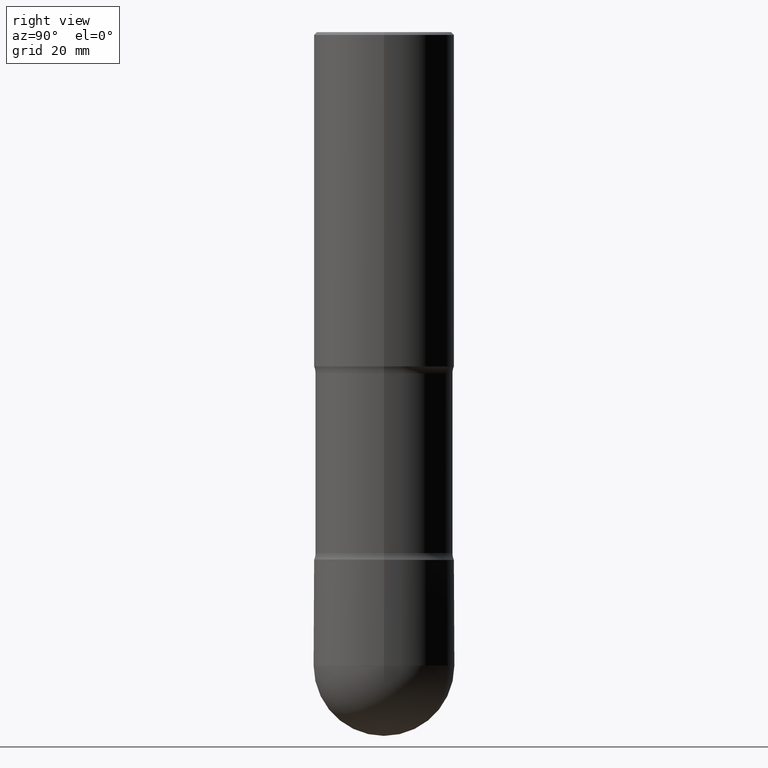
[diagram: clean part render]
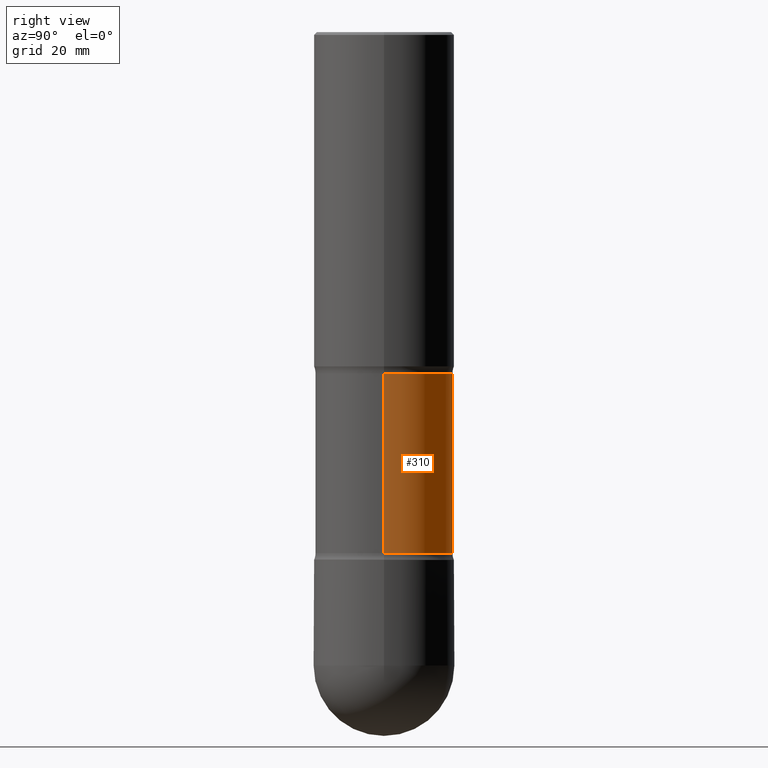
[diagram: same view with one face highlighted and labeled with its STEP entity id]
A machine part, right view. The second image highlights one B-rep face of the part: STEP entity #310.
In plain terms, the highlighted cylindrical surface (partial cylindrical patch) has radius 12.446 mm, axis along (0, -0, -1).
Its self-contained STEP definition (entity closure, byte-faithful):
#11 = AXIS2_PLACEMENT_3D ( 'NONE', #345, #443, #401 ) ;
#25 = DIRECTION ( 'NONE',  ( -1.000000000000000000, 6.982962677686267499E-15, 0.000000000000000000 ) ) ;
#29 = VERTEX_POINT ( 'NONE', #433 ) ;
#37 = ORIENTED_EDGE ( 'NONE', *, *, #284, .F. ) ;
#39 = CARTESIAN_POINT ( 'NONE',  ( 0.4899999999999994360, -1.405430561911518224E-14, -3.701010205144336318 ) ) ;
#52 = AXIS2_PLACEMENT_3D ( 'NONE', #183, #311, #268 ) ;
#79 = ORIENTED_EDGE ( 'NONE', *, *, #547, .T. ) ;
#100 = FACE_OUTER_BOUND ( 'NONE', #253, .T. ) ;
#114 = VECTOR ( 'NONE', #232, 39.37007874015748143 ) ;
#119 = VERTEX_POINT ( 'NONE', #192 ) ;
#122 = LINE ( 'NONE', #537, #114 ) ;
#131 = EDGE_CURVE ( 'NONE', #119, #380, #122, .T. ) ;
#154 = LINE ( 'NONE', #194, #523 ) ;
#169 = CYLINDRICAL_SURFACE ( 'NONE', #11, 0.4899999999999994360 ) ;
#183 = CARTESIAN_POINT ( 'NONE',  ( 9.050705008053328258E-29, -1.292200806612949328E-14, -3.701010205144336318 ) ) ;
#188 = EDGE_CURVE ( 'NONE', #29, #554, #154, .T. ) ;
#192 = CARTESIAN_POINT ( 'NONE',  ( 0.4899999999999994360, -1.177373816591553444E-14, -2.423989794855664570 ) ) ;
#194 = CARTESIAN_POINT ( 'NONE',  ( -0.4899999999999994360, -9.671403308595530512E-15, -3.750000000000000000 ) ) ;
#232 = DIRECTION ( 'NONE',  ( 2.445468806185136877E-29, -3.491481338843145188E-15, -1.000000000000000000 ) ) ;
#246 = DIRECTION ( 'NONE',  ( 2.445468806185136877E-29, -3.491481338843145188E-15, -1.000000000000000000 ) ) ;
#253 = EDGE_LOOP ( 'NONE', ( #79, #290, #37, #294 ) ) ;
#268 = DIRECTION ( 'NONE',  ( -1.000000000000000000, 6.982962677686265133E-15, 0.000000000000000000 ) ) ;
#284 = EDGE_CURVE ( 'NONE', #554, #380, #535, .T. ) ;
#290 = ORIENTED_EDGE ( 'NONE', *, *, #131, .T. ) ;
#294 = ORIENTED_EDGE ( 'NONE', *, *, #188, .F. ) ;
#297 = CARTESIAN_POINT ( 'NONE',  ( 5.927791429830635639E-29, -8.463315134284777408E-15, -2.423989794855664570 ) ) ;
#310 = ADVANCED_FACE ( 'NONE', ( #100 ), #169, .T. ) ;
#311 = DIRECTION ( 'NONE',  ( 2.445468806185136597E-29, -3.491481338843145583E-15, -1.000000000000000000 ) ) ;
#345 = CARTESIAN_POINT ( 'NONE',  ( 9.170508023194262238E-29, -1.309305502066179741E-14, -3.750000000000000000 ) ) ;
#380 = VERTEX_POINT ( 'NONE', #39 ) ;
#381 = DIRECTION ( 'NONE',  ( 2.445468806185136597E-29, -3.491481338843145583E-15, -1.000000000000000000 ) ) ;
#401 = DIRECTION ( 'NONE',  ( -1.000000000000000000, 6.982962677686265133E-15, 0.000000000000000000 ) ) ;
#433 = CARTESIAN_POINT ( 'NONE',  ( -0.4899999999999994360, -5.041663422218510506E-15, -2.423989794855664570 ) ) ;
#443 = DIRECTION ( 'NONE',  ( 2.445468806185136597E-29, -3.491481338843145583E-15, -1.000000000000000000 ) ) ;
#454 = CIRCLE ( 'NONE', #556, 0.4899999999999994360 ) ;
#508 = CARTESIAN_POINT ( 'NONE',  ( -0.4899999999999994360, -9.500356354063226377E-15, -3.701010205144336318 ) ) ;
#523 = VECTOR ( 'NONE', #246, 39.37007874015748143 ) ;
#535 = CIRCLE ( 'NONE', #52, 0.4899999999999994360 ) ;
#537 = CARTESIAN_POINT ( 'NONE',  ( 0.4899999999999994360, -1.645469903956984195E-14, -3.750000000000000000 ) ) ;
#547 = EDGE_CURVE ( 'NONE', #29, #119, #454, .T. ) ;
#554 = VERTEX_POINT ( 'NONE', #508 ) ;
#556 = AXIS2_PLACEMENT_3D ( 'NONE', #297, #381, #25 ) ;